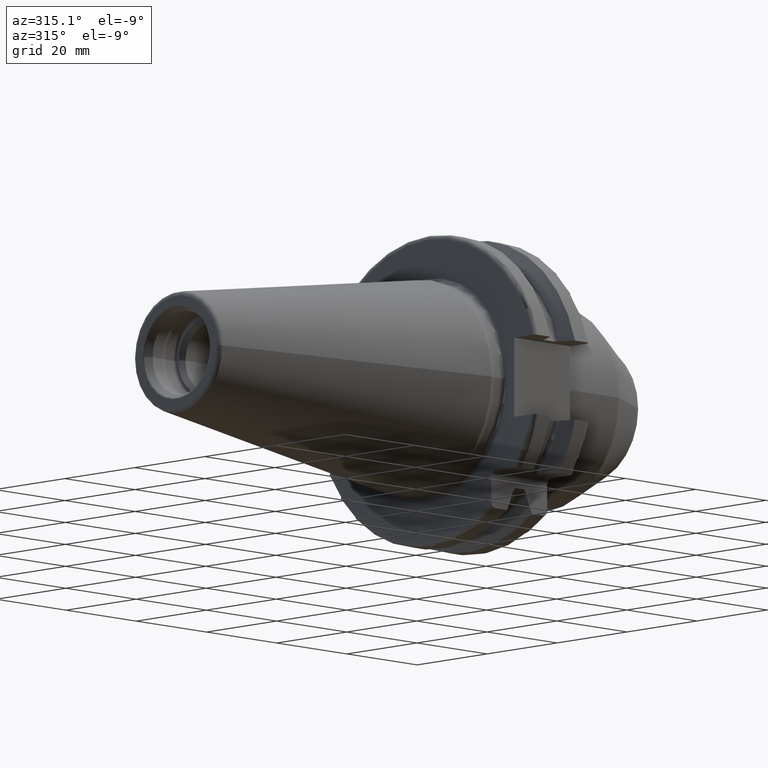
[diagram: clean part render]
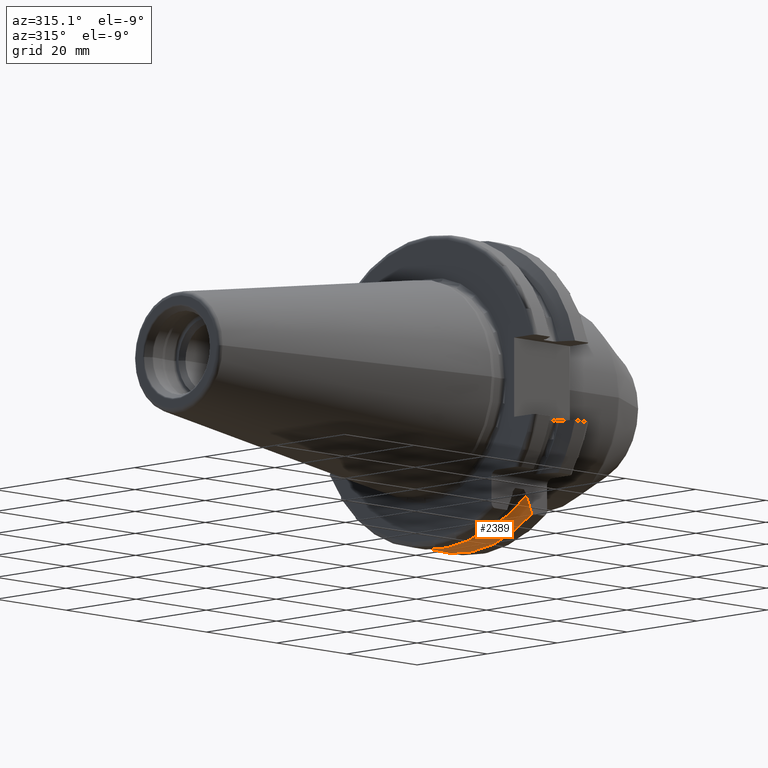
[diagram: same view with one face highlighted and labeled with its STEP entity id]
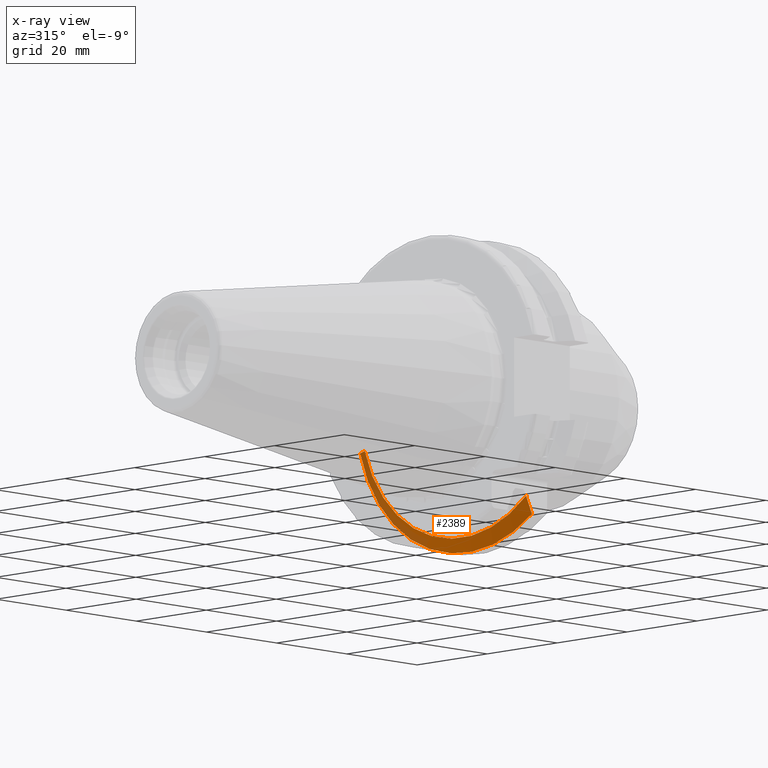
[diagram: x-ray of the same camera — body ghosted, the highlighted face saturated]
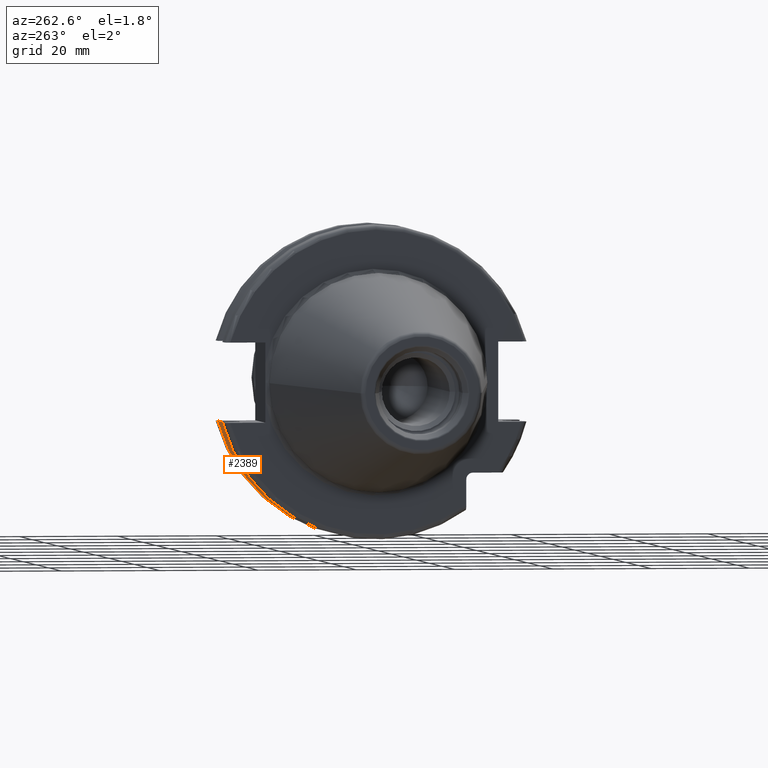
[diagram: same view with one face highlighted and labeled with its STEP entity id]
A machine part, auxiliary view. The second image highlights one B-rep face of the part: STEP entity #2389.
The next image is the same camera in x-ray: the body ghosted, the highlighted face saturated — about 27% of this face is hidden behind the body in this view.
A second angle (auxiliary view) of the same face is appended — the face is thin or edge-on in the first view.
In plain terms, the highlighted conical surface has half-angle 60 deg.
Its self-contained STEP definition (entity closure, byte-faithful):
#606=CARTESIAN_POINT('',(1.470405352042E1,0.E0,0.E0));
#607=DIRECTION('',(1.E0,0.E0,0.E0));
#608=DIRECTION('',(0.E0,-5.777253049980E-1,-8.162312613254E-1));
#609=AXIS2_PLACEMENT_3D('',#606,#607,#608);
#683=CARTESIAN_POINT('',(1.30875E1,2.780681820245E1,-8.1E0));
#684=CARTESIAN_POINT('',(1.326086175289E1,2.811956968242E1,-8.1E0));
#685=CARTESIAN_POINT('',(1.361176448515E1,2.875178670793E1,-8.1E0));
#686=CARTESIAN_POINT('',(1.415055493375E1,2.972014324708E1,-8.1E0));
#687=CARTESIAN_POINT('',(1.451816260441E1,3.037933474515E1,-8.1E0));
#688=CARTESIAN_POINT('',(1.470405352042E1,3.071231684927E1,-8.1E0));
#690=CARTESIAN_POINT('',(1.30875E1,0.E0,0.E0));
#691=DIRECTION('',(-1.E0,0.E0,0.E0));
#692=DIRECTION('',(0.E0,9.600957415706E-1,-2.796715341576E-1));
#693=AXIS2_PLACEMENT_3D('',#690,#691,#692);
#695=CARTESIAN_POINT('',(1.30875E1,-1.835E1,-2.240773613162E1));
#696=CARTESIAN_POINT('',(1.325213098463E1,-1.835E1,-2.277629848758E1));
#697=CARTESIAN_POINT('',(1.359130882027E1,-1.835E1,-2.352831190146E1));
#698=CARTESIAN_POINT('',(1.412957926498E1,-1.835E1,-2.469989032362E1));
#699=CARTESIAN_POINT('',(1.450914442104E1,-1.835E1,-2.551194640168E1));
#700=CARTESIAN_POINT('',(1.470405352042E1,-1.835E1,-2.592554543785E1));
#1440=CARTESIAN_POINT('',(1.30875E1,2.780681820245E1,-8.1E0));
#1442=VERTEX_POINT('',#1440);
#1454=CARTESIAN_POINT('',(1.30875E1,-1.835E1,-2.240773613162E1));
#1456=VERTEX_POINT('',#1454);
#1468=VERTEX_POINT('',#688);
#1588=VERTEX_POINT('',#700);
#2378=CARTESIAN_POINT('',(1.389577676021E1,0.E0,0.E0));
#2379=DIRECTION('',(1.E0,0.E0,0.E0));
#2380=DIRECTION('',(0.E0,-1.E0,0.E0));
#2381=AXIS2_PLACEMENT_3D('',#2378,#2379,#2380);
#2382=CONICAL_SURFACE('',#2381,3.036252358474E1,6.E1);
#2383=ORIENTED_EDGE('',*,*,#1882,.F.);
#2384=ORIENTED_EDGE('',*,*,#2087,.T.);
#2385=ORIENTED_EDGE('',*,*,#1813,.T.);
#2386=ORIENTED_EDGE('',*,*,#2279,.T.);
#2387=EDGE_LOOP('',(#2383,#2384,#2385,#2386));
#2388=FACE_OUTER_BOUND('',#2387,.F.);
#2389=ADVANCED_FACE('',(#2388),#2382,.T.);
#610=CIRCLE('',#609,3.17625E1);
#689=B_SPLINE_CURVE_WITH_KNOTS('',3,(#683,#684,#685,#686,#687,#688),
.UNSPECIFIED.,.F.,.F.,(4,1,1,4),(0.E0,3.333333333333E-1,6.666666666667E-1,1.E0),
.UNSPECIFIED.);
#694=CIRCLE('',#693,2.896254716948E1);
#701=B_SPLINE_CURVE_WITH_KNOTS('',3,(#695,#696,#697,#698,#699,#700),
.UNSPECIFIED.,.F.,.F.,(4,1,1,4),(0.E0,3.333333333333E-1,6.666666666667E-1,1.E0),
.UNSPECIFIED.);
#1813=EDGE_CURVE('',#1456,#1588,#701,.T.);
#1882=EDGE_CURVE('',#1442,#1468,#689,.T.);
#2087=EDGE_CURVE('',#1442,#1456,#694,.T.);
#2279=EDGE_CURVE('',#1588,#1468,#610,.T.);